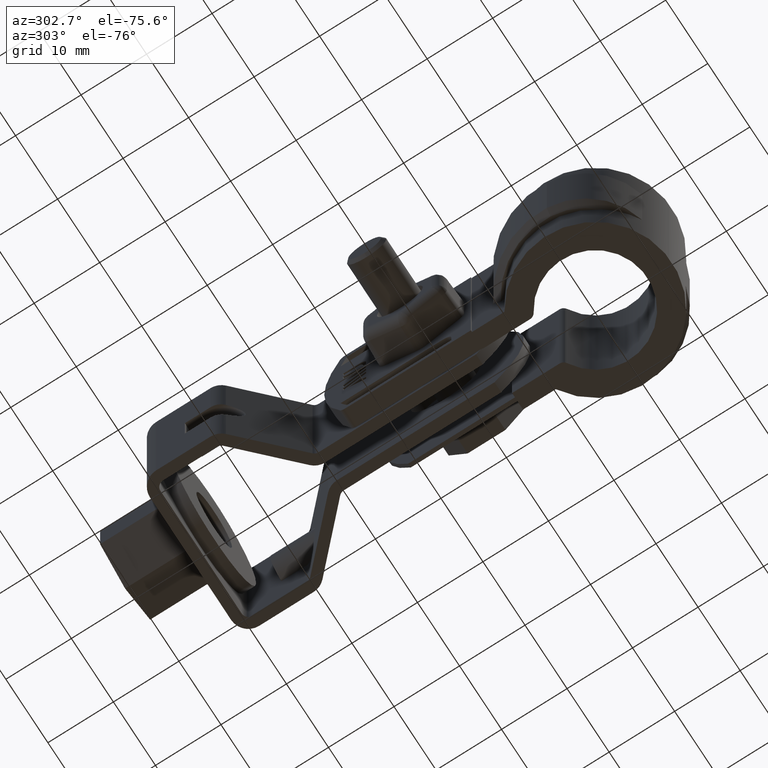
[diagram: clean part render]
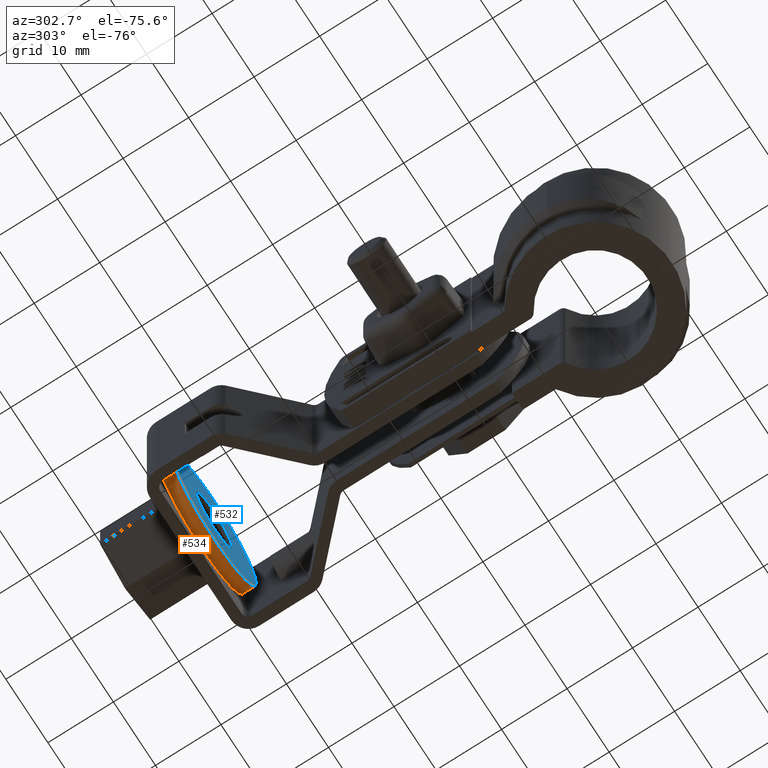
[diagram: same view with the hole feature highlighted: cylindrical wall and planar end face, labeled with their STEP entity ids]
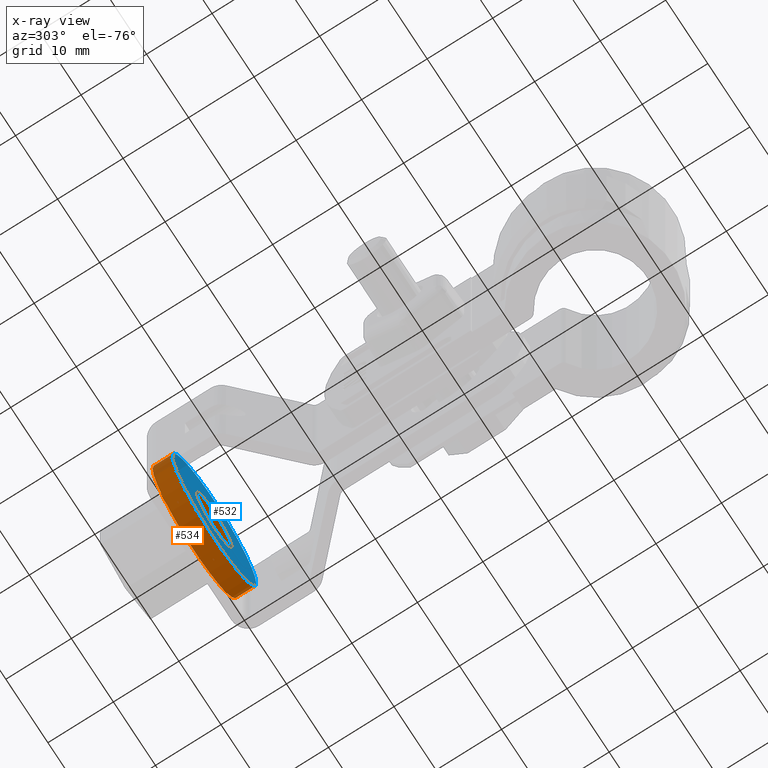
[diagram: x-ray of the same camera — body ghosted, the hole faces saturated]
A machine part, auxiliary view. The highlighted faces form one hole feature of diameter 20 mm: the cylindrical wall (entity #534, orange) and its adjacent planar end face (entity #532, blue) — they share a circular edge in the B-rep.
The next image is the same camera in x-ray (body ghosted, the hole faces saturated) — the bore reads through the body.
Wall:
#534 = ADVANCED_FACE( '', ( #1055, #1056 ), #1057, .T. );
#1055 = FACE_OUTER_BOUND( '', #2336, .T. );
#1056 = FACE_OUTER_BOUND( '', #2337, .T. );
#1057 = CYLINDRICAL_SURFACE( '', #2338, 10.0000000000000 );
#2336 = EDGE_LOOP( '', ( #5219 ) );
#2337 = EDGE_LOOP( '', ( #5220 ) );
#2338 = AXIS2_PLACEMENT_3D( '', #5221, #5222, #5223 );
#5219 = ORIENTED_EDGE( '', *, *, #7021, .T. );
#5220 = ORIENTED_EDGE( '', *, *, #7010, .F. );
#5221 = CARTESIAN_POINT( '', ( -6.35267714061027E-013, 58.1954761009211, -12.5000000007055 ) );
#5222 = DIRECTION( '', ( 1.50571936274857E-013, -1.00000000000000, 5.16559017782484E-012 ) );
#5223 = DIRECTION( '', ( 1.00000000000000, 1.50571936275955E-013, 2.12701571834269E-013 ) );
#7010 = EDGE_CURVE( '', #8261, #8261, #8262, .T. );
#7021 = EDGE_CURVE( '', #8280, #8280, #8281, .T. );
#8261 = VERTEX_POINT( '', #11413 );
#8262 = CIRCLE( '', #11414, 10.0000000000000 );
#8280 = VERTEX_POINT( '', #11441 );
#8281 = CIRCLE( '', #11442, 10.0000000000000 );
#11413 = CARTESIAN_POINT( '', ( 9.99999999999891, 61.1954761009226, -12.5000000007189 ) );
#11414 = AXIS2_PLACEMENT_3D( '', #13147, #13148, #13149 );
#11441 = CARTESIAN_POINT( '', ( 9.99999999999937, 58.1954761009226, -12.5000000007034 ) );
#11442 = AXIS2_PLACEMENT_3D( '', #13162, #13163, #13164 );
#13147 = CARTESIAN_POINT( '', ( -1.08698352288560E-012, 61.1954761009211, -12.5000000007210 ) );
#13148 = DIRECTION( '', ( -1.50571936274857E-013, 1.00000000000000, -5.16559017782484E-012 ) );
#13149 = DIRECTION( '', ( 1.00000000000000, 1.50571936275955E-013, 2.12701571834269E-013 ) );
#13162 = CARTESIAN_POINT( '', ( -6.35267714061027E-013, 58.1954761009211, -12.5000000007055 ) );
#13163 = DIRECTION( '', ( -1.50571936274857E-013, 1.00000000000000, -5.16559017782484E-012 ) );
#13164 = DIRECTION( '', ( 1.00000000000000, 1.50571936275955E-013, 2.12701571834269E-013 ) );
End face:
#532 = ADVANCED_FACE( '', ( #1049, #1050 ), #1051, .F. );
#1049 = FACE_BOUND( '', #2330, .T. );
#1050 = FACE_OUTER_BOUND( '', #2331, .T. );
#1051 = PLANE( '', #2332 );
#2330 = EDGE_LOOP( '', ( #5209 ) );
#2331 = EDGE_LOOP( '', ( #5210 ) );
#2332 = AXIS2_PLACEMENT_3D( '', #5211, #5212, #5213 );
#5209 = ORIENTED_EDGE( '', *, *, #7020, .T. );
#5210 = ORIENTED_EDGE( '', *, *, #7021, .F. );
#5211 = CARTESIAN_POINT( '', ( -6.35267714061027E-013, 58.1954761009211, -12.5000000007055 ) );
#5212 = DIRECTION( '', ( -1.50571936274857E-013, 1.00000000000000, -5.16559017782484E-012 ) );
#5213 = DIRECTION( '', ( 1.00000000000000, 1.50571936275955E-013, 2.12701571834269E-013 ) );
#7020 = EDGE_CURVE( '', #8278, #8278, #8279, .T. );
#7021 = EDGE_CURVE( '', #8280, #8280, #8281, .T. );
#8278 = VERTEX_POINT( '', #11439 );
#8279 = CIRCLE( '', #11440, 4.25000000000000 );
#8280 = VERTEX_POINT( '', #11441 );
#8281 = CIRCLE( '', #11442, 10.0000000000000 );
#11439 = CARTESIAN_POINT( '', ( 4.24999999999936, 58.1954761009217, -12.5000000007046 ) );
#11440 = AXIS2_PLACEMENT_3D( '', #13159, #13160, #13161 );
#11441 = CARTESIAN_POINT( '', ( 9.99999999999937, 58.1954761009226, -12.5000000007034 ) );
#11442 = AXIS2_PLACEMENT_3D( '', #13162, #13163, #13164 );
#13159 = CARTESIAN_POINT( '', ( -6.37436118405998E-013, 58.1954761009211, -12.5000000007055 ) );
#13160 = DIRECTION( '', ( -1.50571936274857E-013, 1.00000000000000, -5.16559017782484E-012 ) );
#13161 = DIRECTION( '', ( 1.00000000000000, 1.50571936275955E-013, 2.12701571834269E-013 ) );
#13162 = CARTESIAN_POINT( '', ( -6.35267714061027E-013, 58.1954761009211, -12.5000000007055 ) );
#13163 = DIRECTION( '', ( -1.50571936274857E-013, 1.00000000000000, -5.16559017782484E-012 ) );
#13164 = DIRECTION( '', ( 1.00000000000000, 1.50571936275955E-013, 2.12701571834269E-013 ) );